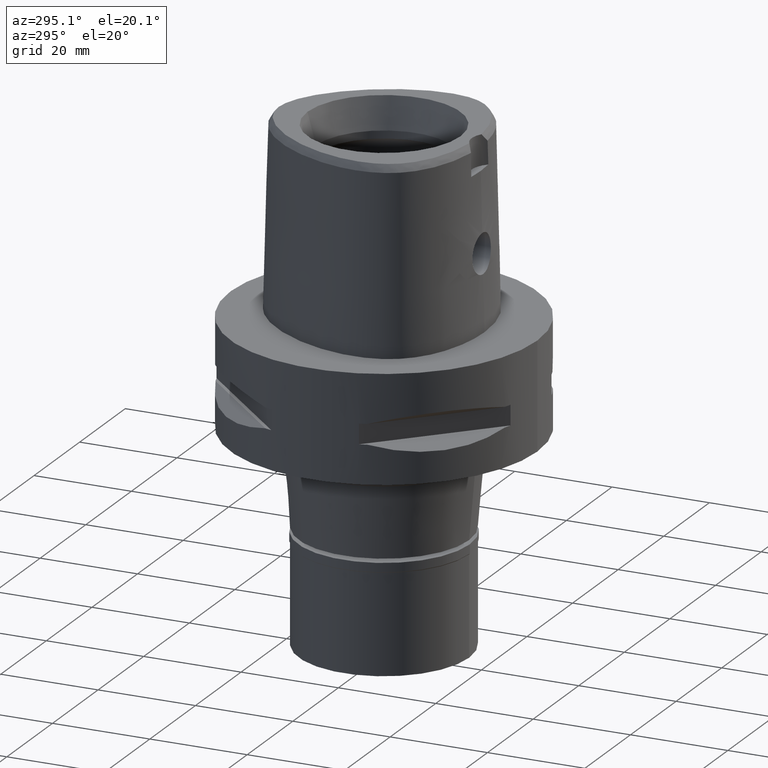
[diagram: clean part render]
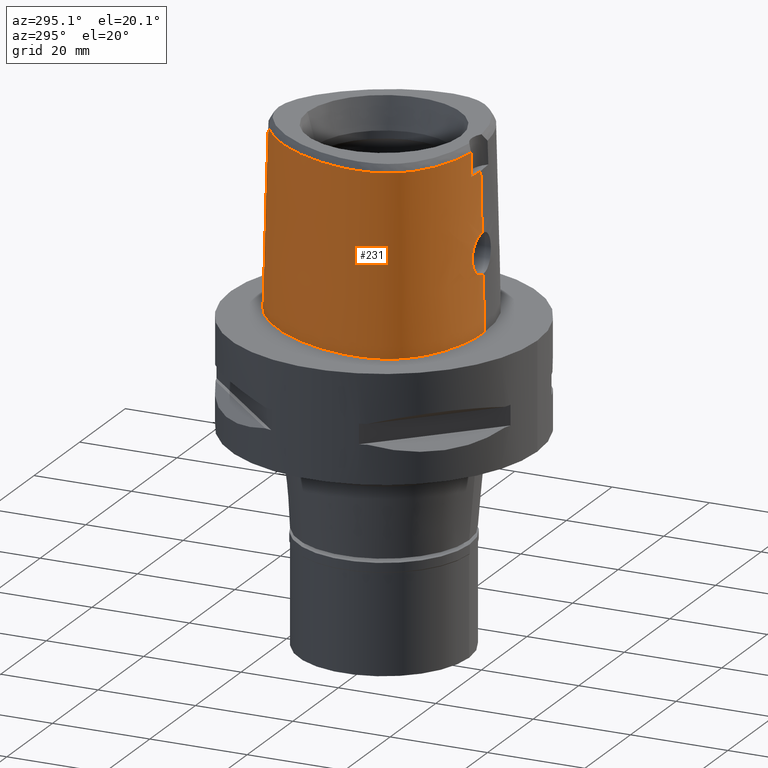
[diagram: same view with one face highlighted and labeled with its STEP entity id]
A machine part, auxiliary view. The second image highlights one B-rep face of the part: STEP entity #231.
In plain terms, the highlighted face is a freeform B-spline surface patch.
Its self-contained STEP definition (entity closure, byte-faithful):
#16 = CARTESIAN_POINT ( 'NONE',  ( -3.649858191622795456, -20.05285460892899607, 17.25615196024159559 ) ) ;
#40 = CARTESIAN_POINT ( 'NONE',  ( -1.218688521293909810, -20.16976517622365250, 19.36289558661738397 ) ) ;
#63 = CARTESIAN_POINT ( 'NONE',  ( -3.772616113751972478, -20.12080066352347174, 14.02676866728383942 ) ) ;
#64 = ORIENTED_EDGE ( 'NONE', *, *, #3840, .T. ) ;
#117 = CARTESIAN_POINT ( 'NONE',  ( -3.563466956011494879, -20.15432510150082734, 13.57422877057604005 ) ) ;
#127 = CARTESIAN_POINT ( 'NONE',  ( -21.57281239326000133, -9.001246195373999726, -0.7304377057491999725 ) ) ;
#135 = CARTESIAN_POINT ( 'NONE',  ( -3.389317851003633031, -20.17900000631157909, 13.28299490760078783 ) ) ;
#143 = CARTESIAN_POINT ( 'NONE',  ( 0.4441907014477999849, 22.53710777146999789, 37.25232299321000795 ) ) ;
#156 = CARTESIAN_POINT ( 'NONE',  ( -1.826967432883000104E-12, -20.38876923348000147, 11.44999999999999929 ) ) ;
#169 = CARTESIAN_POINT ( 'NONE',  ( -20.36546124570000060, -11.75800453239999932, -0.7304377057491999725 ) ) ;
#186 = CARTESIAN_POINT ( 'NONE',  ( -20.09619618740784119, -10.23243843868653968, 36.52186244848000740 ) ) ;
#196 = CARTESIAN_POINT ( 'NONE',  ( -10.55288405350999881, 18.94467586893999922, 11.93048252724000058 ) ) ;
#216 = CARTESIAN_POINT ( 'NONE',  ( -2.568271205913000177, 23.31126238454999822, -0.7304377057491999725 ) ) ;
#231 = ADVANCED_FACE ( 'NONE', ( #809 ), #270, .T. ) ;
#266 = CARTESIAN_POINT ( 'NONE',  ( -1.836486890036999942, -19.76356454731999790, 37.25232299321000795 ) ) ;
#270 = B_SPLINE_SURFACE_WITH_KNOTS ( 'NONE', 3, 3, ( 
 ( #2274, #3753, #4266, #4609 ),
 ( #1249, #4567, #3458, #143 ),
 ( #3852, #1638, #3137, #3506 ),
 ( #216, #3525, #2319, #955 ),
 ( #2008, #2036, #888, #1316 ),
 ( #4629, #498, #2768, #1275 ),
 ( #1681, #196, #2728, #2704 ),
 ( #2413, #2747, #518, #4587 ),
 ( #4199, #3117, #3804, #3096 ),
 ( #3442, #2349, #3050, #1972 ),
 ( #4544, #3832, #4243, #1228 ),
 ( #586, #3907, #1296, #4223 ),
 ( #2056, #2681, #4177, #857 ),
 ( #127, #908, #1619, #3073 ),
 ( #2367, #1989, #3480, #533 ),
 ( #169, #1661, #928, #2387 ),
 ( #3877, #559, #2836, #4726 ),
 ( #288, #2455, #3949, #1344 ),
 ( #2125, #3207, #4679, #627 ),
 ( #1365, #2100, #653, #4702 ),
 ( #1000, #3578, #3600, #1384 ),
 ( #1408, #4332, #1025, #2433 ),
 ( #1728, #1770, #2482, #266 ),
 ( #1751, #3978, #1796, #3231 ),
 ( #674, #2816, #2795, #4288 ) ),
 .UNSPECIFIED., .F., .F., .F.,
 ( 4, 1, 1, 1, 1, 1, 1, 1, 1, 1, 1, 1, 1, 1, 1, 1, 1, 1, 1, 1, 1, 1, 4 ),
 ( 4, 4 ),
 ( -0.01173777939057999917, 0.0000000000000000000, 0.04166666666769999749, 0.08333333333431000578, 0.1250000000009000023, 0.1666666666676000219, 0.2500000000008000267, 0.3333333333339000282, 0.4166666666672000363, 0.5000000000004000134, 0.5416666666671000607, 0.5833333333336000459, 0.6250000000002999823, 0.6458333333335000148, 0.6666666666668999985, 0.6875000000001999512, 0.7083333333335000148, 0.7500000000001000311, 0.7916666666667000474, 0.8333333333333000637, 0.9166666666666000163, 1.000000000000000000, 1.008985696609000060 ),
 ( 7.050089470551000224E-10, 0.9999999640444999782 ),
 .UNSPECIFIED. ) ;
#288 = CARTESIAN_POINT ( 'NONE',  ( -18.58171406635000267, -14.18198046596000061, -0.7304377057491999725 ) ) ;
#310 = CARTESIAN_POINT ( 'NONE',  ( -0.2465602664575549108, -20.18628283968999426, 19.54999999999999005 ) ) ;
#316 = CARTESIAN_POINT ( 'NONE',  ( -18.06826688405839221, 10.43171874929906373, 5.578078756817046735E-08 ) ) ;
#342 = CARTESIAN_POINT ( 'NONE',  ( -2.841795523416677849, -20.09992001380241788, 18.38561866173669657 ) ) ;
#346 = LINE ( 'NONE', #4310, #3027 ) ;
#365 = CARTESIAN_POINT ( 'NONE',  ( -2.849743677673421516, -20.09946755748678626, 18.37775519025476001 ) ) ;
#385 = CARTESIAN_POINT ( 'NONE',  ( -4.049869104643215145, -20.05129905478609587, 15.54469739549604057 ) ) ;
#409 = B_SPLINE_CURVE_WITH_KNOTS ( 'NONE', 3,
 ( #3038, #3790, #2358, #3843, #2757, #1306, #2401, #576, #2047, #186, #3897, #1671, #4255, #3128, #941, #4620, #2203, #2177, #2627, #1516, #1440, #1100, #2967 ),
 .UNSPECIFIED., .F., .F.,
 ( 4, 1, 1, 1, 1, 1, 1, 1, 1, 1, 1, 1, 1, 1, 1, 1, 1, 1, 1, 1, 4 ),
 ( 0.0000000000000000000, 0.03580973941716469877, 0.1234633994701209853, 0.1672902294965465941, 0.2111170595229721891, 0.2549438895493977841, 0.2768573045626106510, 0.2987707195758233514, 0.3206841345891413009, 0.3425975496022489741, 0.3864243796287796795, 0.4302512096551000531, 0.4740780396816308695, 0.5617316997344818930, 0.6493853597874382766, 0.7370390198401842730, 0.8246926798930355185, 0.8685195099195662793, 0.9123463399459812440, 0.9561731699724174138, 1.000000000000000000 ),
 .UNSPECIFIED. ) ;
#415 = CARTESIAN_POINT ( 'NONE',  ( -2.076619386130083456, -20.13897606457087974, 18.97731061925280827 ) ) ;
#436 = CARTESIAN_POINT ( 'NONE',  ( -2.858582045861465470, -20.09896337044925119, 18.36897456041259247 ) ) ;
#456 = CARTESIAN_POINT ( 'NONE',  ( -1.577307334188390975, -20.34546186348035945, 11.76976510540186283 ) ) ;
#471 = B_SPLINE_CURVE_WITH_KNOTS ( 'NONE', 3,
 ( #1375, #2826, #4320, #3962 ),
 .UNSPECIFIED., .F., .F.,
 ( 4, 4 ),
 ( 0.0000000000000000000, 1.000000000000000000 ),
 .UNSPECIFIED. ) ;
#472 = EDGE_CURVE ( 'NONE', #1996, #4533, #3687, .T. ) ;
#498 = CARTESIAN_POINT ( 'NONE',  ( -7.420053134118999694, 21.05635744665000075, 11.93048252724000058 ) ) ;
#509 = CARTESIAN_POINT ( 'NONE',  ( -1.764048498118580666, -20.33452150806801129, 11.85388578886081490 ) ) ;
#518 = CARTESIAN_POINT ( 'NONE',  ( -13.93560864782999964, 15.24203790070000153, 24.59140276021999938 ) ) ;
#526 = CARTESIAN_POINT ( 'NONE',  ( -3.476817332028718788, -20.16688086450436757, 13.42262370835924656 ) ) ;
#533 = CARTESIAN_POINT ( 'NONE',  ( -20.07948492776000293, -10.22500064213000037, 37.25232299321000795 ) ) ;
#559 = CARTESIAN_POINT ( 'NONE',  ( -19.40779768539000116, -12.64961927206000070, 11.93048252724000058 ) ) ;
#576 = CARTESIAN_POINT ( 'NONE',  ( -18.90964971337785983, -12.28759719905239045, 36.52186244848000740 ) ) ;
#586 = CARTESIAN_POINT ( 'NONE',  ( -22.26285556604000249, -4.100361500044999552, -0.7304377057491999725 ) ) ;
#624 = CARTESIAN_POINT ( 'NONE',  ( -1.826967432883000104E-12, -20.38876923348000147, 11.44999999999999929 ) ) ;
#627 = CARTESIAN_POINT ( 'NONE',  ( -16.38077686191000026, -14.94316452263999828, 37.25232299321000795 ) ) ;
#630 = CARTESIAN_POINT ( 'NONE',  ( -14.67337964350561208, -17.21410156128839120, 5.578078756817046735E-08 ) ) ;
#653 = CARTESIAN_POINT ( 'NONE',  ( -14.36818029103000072, -16.67825722750999873, 24.59140276021999938 ) ) ;
#672 = CARTESIAN_POINT ( 'NONE',  ( 2.041042029990999821E-08, -19.88004246002000031, 31.80000004972000127 ) ) ;
#674 = CARTESIAN_POINT ( 'NONE',  ( 0.6840430853692001101, -20.68668155051999946, -0.7304377057491999725 ) ) ;
#693 = CARTESIAN_POINT ( 'NONE',  ( -3.762864782077179004, -20.12247647892435864, 14.00219278009875445 ) ) ;
#722 = CARTESIAN_POINT ( 'NONE',  ( -4.047644476448693851, -20.04912645071335930, 15.64176500048648855 ) ) ;
#746 = CARTESIAN_POINT ( 'NONE',  ( -2.541035532969751376, -20.11625602304394889, 18.65525438412482373 ) ) ;
#769 = CARTESIAN_POINT ( 'NONE',  ( -3.867989777293329379, -20.10354468166140762, 14.29757425333923315 ) ) ;
#800 = CARTESIAN_POINT ( 'NONE',  ( -2.694934699592128169, -20.10807502175849493, 18.52371569493945103 ) ) ;
#809 = FACE_OUTER_BOUND ( 'NONE', #1065, .T. ) ;
#822 = CARTESIAN_POINT ( 'NONE',  ( -3.305989288864819464, -20.19025274514700286, 13.15682387669119180 ) ) ;
#857 = CARTESIAN_POINT ( 'NONE',  ( -21.13154876751000089, -6.714587060488000247, 37.25232299321000795 ) ) ;
#888 = CARTESIAN_POINT ( 'NONE',  ( -4.868968415433998942, 21.95285536057999920, 24.59140276021999938 ) ) ;
#908 = CARTESIAN_POINT ( 'NONE',  ( -21.26836741843999690, -8.910752246401999699, 11.93048252724000058 ) ) ;
#927 = VERTEX_POINT ( 'NONE', #3716 ) ;
#928 = CARTESIAN_POINT ( 'NONE',  ( -19.81622822793000083, -11.44090470054999997, 24.59140276021999938 ) ) ;
#941 = CARTESIAN_POINT ( 'NONE',  ( -19.88562090098201196, 4.345879983792136692, 36.52186244848000740 ) ) ;
#955 = CARTESIAN_POINT ( 'NONE',  ( -2.373090300183000156, 22.37624338796999979, 37.25232299321000795 ) ) ;
#971 = VERTEX_POINT ( 'NONE', #2619 ) ;
#1000 = CARTESIAN_POINT ( 'NONE',  ( -11.23887130274999890, -18.91049776076999578, -0.7304377057491999725 ) ) ;
#1025 = CARTESIAN_POINT ( 'NONE',  ( -6.232237579969999608, -19.68961177282000108, 24.59140276021999938 ) ) ;
#1028 = CARTESIAN_POINT ( 'NONE',  ( -20.74942740748031866, 4.657187499524839680, 5.578078756817046735E-08 ) ) ;
#1033 = VERTEX_POINT ( 'NONE', #4502 ) ;
#1055 = CARTESIAN_POINT ( 'NONE',  ( -20.34961798436241054, -11.74885742116761378, 5.578078756817046735E-08 ) ) ;
#1065 = EDGE_LOOP ( 'NONE', ( #3628, #1079, #3177, #4565, #3230, #4300, #3762, #64 ) ) ;
#1071 = CARTESIAN_POINT ( 'NONE',  ( -4.049378693777793359, -20.05052524963973681, 15.57781592039557950 ) ) ;
#1079 = ORIENTED_EDGE ( 'NONE', *, *, #2034, .F. ) ;
#1092 = CARTESIAN_POINT ( 'NONE',  ( -1.513006591026923697, -20.16094715275854909, 19.25680973155101583 ) ) ;
#1098 = CARTESIAN_POINT ( 'NONE',  ( -22.05732874183049219, -6.847636718550103474, 5.578078756817046735E-08 ) ) ;
#1100 = CARTESIAN_POINT ( 'NONE',  ( -0.7901461696979037441, 22.56201478746783806, 36.52186244848000740 ) ) ;
#1121 = CARTESIAN_POINT ( 'NONE',  ( -3.921173084819797872, -20.04104734494617190, 16.54732451996678222 ) ) ;
#1143 = CARTESIAN_POINT ( 'NONE',  ( -2.655457370615677437, -20.11019771419116609, 18.55835643850276639 ) ) ;
#1167 = CARTESIAN_POINT ( 'NONE',  ( -2.008183232375480021, -20.14203900875502384, 19.01707311501905551 ) ) ;
#1228 = CARTESIAN_POINT ( 'NONE',  ( -21.05621900266000068, -0.4440251782989000362, 37.25232299321000795 ) ) ;
#1244 = CARTESIAN_POINT ( 'NONE',  ( -2.503154198992993962, -19.81241979316181201, 31.80000012753031413 ) ) ;
#1249 = CARTESIAN_POINT ( 'NONE',  ( 0.4823619557848999317, 23.48603818279000066, -0.7304377057491999725 ) ) ;
#1261 = CARTESIAN_POINT ( 'NONE',  ( -1.818429026798849657, -20.33108181647827806, 11.88065649053977779 ) ) ;
#1275 = CARTESIAN_POINT ( 'NONE',  ( -7.099337721380000410, 20.50831381300999823, 37.25232299321000795 ) ) ;
#1288 = CARTESIAN_POINT ( 'NONE',  ( -1.564168861561392898, -20.34618638899214815, 11.76423681587232473 ) ) ;
#1296 = CARTESIAN_POINT ( 'NONE',  ( -21.62788399967999808, -4.104079498482999355, 24.59140276021999938 ) ) ;
#1306 = CARTESIAN_POINT ( 'NONE',  ( -16.39211280191495845, -14.95758113318670013, 36.52186244848000740 ) ) ;
#1316 = CARTESIAN_POINT ( 'NONE',  ( -4.750826164977999255, 21.65775791936999894, 37.25232299321000795 ) ) ;
#1344 = CARTESIAN_POINT ( 'NONE',  ( -17.88993649006999931, -13.52675014241999918, 37.25232299321000795 ) ) ;
#1365 = CARTESIAN_POINT ( 'NONE',  ( -14.68244497151999894, -17.23001773086999933, -0.7304377057491999725 ) ) ;
#1368 = CARTESIAN_POINT ( 'NONE',  ( -7.571159433644832681, 21.31457031129234991, 5.578078756817046735E-08 ) ) ;
#1375 = CARTESIAN_POINT ( 'NONE',  ( -3.637738201363999835, -19.56971413236999879, 36.52186244848000030 ) ) ;
#1384 = CARTESIAN_POINT ( 'NONE',  ( -10.91263705801000050, -18.01320795109999651, 37.25232299321000795 ) ) ;
#1408 = CARTESIAN_POINT ( 'NONE',  ( -6.344715576812999913, -20.31619965031999797, -0.7304377057491999725 ) ) ;
#1411 = CARTESIAN_POINT ( 'NONE',  ( -5.098437016762670027, 22.52602538933180654, 5.578078756817046735E-08 ) ) ;
#1440 = CARTESIAN_POINT ( 'NONE',  ( -2.376843896520111521, 22.39422508473955276, 36.52186244848000740 ) ) ;
#1454 = CARTESIAN_POINT ( 'NONE',  ( -3.624864988588119452, -20.05423747265956536, 17.30729158533448242 ) ) ;
#1478 = CARTESIAN_POINT ( 'NONE',  ( -3.734204860122324998, -20.04849282776993746, 17.06789273197489365 ) ) ;
#1509 = CARTESIAN_POINT ( 'NONE',  ( -4.043900534997319163, -20.04716150420645704, 15.73788962697827643 ) ) ;
#1516 = CARTESIAN_POINT ( 'NONE',  ( -4.757642277159076727, 21.67478330407253040, 36.52186244848000740 ) ) ;
#1533 = CARTESIAN_POINT ( 'NONE',  ( -2.021975801308057985, -20.14144108781809450, 19.00914719193512425 ) ) ;
#1552 = CARTESIAN_POINT ( 'NONE',  ( -2.432431204728643159, -20.28556448456913586, 12.25071786241814387 ) ) ;
#1569 = VECTOR ( 'NONE', #4329, 1000.000000000000114 ) ;
#1610 = CARTESIAN_POINT ( 'NONE',  ( -2.919415606531457819, -20.23623719063768789, 12.69286763397334106 ) ) ;
#1619 = CARTESIAN_POINT ( 'NONE',  ( -20.96392244361999957, -8.820258297431001537, 24.59140276021999938 ) ) ;
#1638 = CARTESIAN_POINT ( 'NONE',  ( -0.5985508179845999699, 23.20171276753999834, 11.93048252724000058 ) ) ;
#1650 = CARTESIAN_POINT ( 'NONE',  ( -3.655112673111937216, -20.14040906882405224, 13.75065222282470501 ) ) ;
#1661 = CARTESIAN_POINT ( 'NONE',  ( -20.09084473681999938, -11.59945461648000098, 11.93048252724000058 ) ) ;
#1671 = CARTESIAN_POINT ( 'NONE',  ( -21.14970188363856707, -6.717195958887922203, 36.52186244848000740 ) ) ;
#1681 = CARTESIAN_POINT ( 'NONE',  ( -10.75753573857999967, 19.18839675802000144, -0.7304377057491999725 ) ) ;
#1728 = CARTESIAN_POINT ( 'NONE',  ( -1.886862292265999885, -20.71358859976999867, -0.7304377057491999725 ) ) ;
#1751 = CARTESIAN_POINT ( 'NONE',  ( 0.4560943670189999688, -20.69106768545000108, -0.7304377057491999725 ) ) ;
#1770 = CARTESIAN_POINT ( 'NONE',  ( -1.870070491522999978, -20.39691391562000433, 11.93048252724000058 ) ) ;
#1773 = CARTESIAN_POINT ( 'NONE',  ( -0.8548392421977135669, 23.47499999860813347, 5.578078756817047397E-08 ) ) ;
#1796 = CARTESIAN_POINT ( 'NONE',  ( 0.4479792490987999920, -20.05810150585000429, 24.59140276021999938 ) ) ;
#1799 = CARTESIAN_POINT ( 'NONE',  ( -11.23259756679494892, -18.89324218618955697, 5.578078756817046735E-08 ) ) ;
#1819 = CARTESIAN_POINT ( 'NONE',  ( -1.431398616061842599, -20.16358825832322665, 19.28889715814925410 ) ) ;
#1838 = CARTESIAN_POINT ( 'NONE',  ( -1.531355196197170088, -20.16033613076390552, 19.24935847382499432 ) ) ;
#1844 = CARTESIAN_POINT ( 'NONE',  ( -16.95889172506567988, -15.67838867077062481, 5.578078756817046735E-08 ) ) ;
#1863 = CARTESIAN_POINT ( 'NONE',  ( -3.843220157484924737, -20.04326959302272826, 16.80670597848216730 ) ) ;
#1890 = CARTESIAN_POINT ( 'NONE',  ( -2.755818216838078261, -20.10473609888688173, 18.46794935358836298 ) ) ;
#1909 = CARTESIAN_POINT ( 'NONE',  ( -4.050826983269280923, -20.05812326574994842, 15.26911354800622433 ) ) ;
#1931 = CARTESIAN_POINT ( 'NONE',  ( -1.559081890575650275, -20.34646556254509520, 11.76210768259175410 ) ) ;
#1932 = VERTEX_POINT ( 'NONE', #624 ) ;
#1936 = CARTESIAN_POINT ( 'NONE',  ( 6.838609506018792443E-09, -20.08420636276242277, 23.63333344114128920 ) ) ;
#1960 = CARTESIAN_POINT ( 'NONE',  ( -3.752359611898203440, -20.12427161485050675, 13.97607457711757384 ) ) ;
#1972 = CARTESIAN_POINT ( 'NONE',  ( -19.86834421984000087, 4.339653634898000156, 37.25232299321000795 ) ) ;
#1989 = CARTESIAN_POINT ( 'NONE',  ( -20.65879048208999791, -10.48283619421000168, 11.93048252724000058 ) ) ;
#1996 = VERTEX_POINT ( 'NONE', #672 ) ;
#1997 = CARTESIAN_POINT ( 'NONE',  ( -2.890541755315603201, -20.23943525147280909, 12.66321716119510832 ) ) ;
#2002 = EDGE_CURVE ( 'NONE', #1932, #3379, #4699, .T. ) ;
#2008 = CARTESIAN_POINT ( 'NONE',  ( -5.105252916348000269, 22.54305024301000060, -0.7304377057491999725 ) ) ;
#2023 = CARTESIAN_POINT ( 'NONE',  ( -3.383562101598340366, -20.17977963108087636, 13.27422462535213121 ) ) ;
#2034 = EDGE_CURVE ( 'NONE', #971, #1932, #3745, .T. ) ;
#2036 = CARTESIAN_POINT ( 'NONE',  ( -4.987110665891000494, 22.24795280178999946, 11.93048252724000058 ) ) ;
#2047 = CARTESIAN_POINT ( 'NONE',  ( -19.55745547455726552, -11.29150218116194893, 36.52186244848000740 ) ) ;
#2056 = CARTESIAN_POINT ( 'NONE',  ( -22.07548129175999918, -6.850245535577999867, -0.7304377057491999725 ) ) ;
#2100 = CARTESIAN_POINT ( 'NONE',  ( -14.52531263126999939, -16.95413747918999903, 11.93048252724000058 ) ) ;
#2125 = CARTESIAN_POINT ( 'NONE',  ( -16.97022731150000041, -15.69280483165999840, -0.7304377057491999725 ) ) ;
#2149 = CARTESIAN_POINT ( 'NONE',  ( -22.24453907715009393, -4.100468750008132268, 5.578078756817046735E-08 ) ) ;
#2152 = EDGE_CURVE ( 'NONE', #3298, #927, #409, .T. ) ;
#2167 = CARTESIAN_POINT ( 'NONE',  ( -3.756303482488484669, -20.12359959389111452, 13.98581309488230318 ) ) ;
#2177 = CARTESIAN_POINT ( 'NONE',  ( -10.15538788053455121, 18.47129535094094166, 36.52186244848000740 ) ) ;
#2197 = CARTESIAN_POINT ( 'NONE',  ( -2.021645074153961552, -20.14145548737383606, 19.00933841612806319 ) ) ;
#2203 = CARTESIAN_POINT ( 'NONE',  ( -13.70645028111076513, 15.04851272300261655, 36.52186244848000740 ) ) ;
#2218 = CARTESIAN_POINT ( 'NONE',  ( -1.778004404895339174, -20.15158921387097735, 19.14143956016801340 ) ) ;
#2241 = CARTESIAN_POINT ( 'NONE',  ( -2.823322171198599406, -20.10096727497464286, 18.40374443014241734 ) ) ;
#2264 = CARTESIAN_POINT ( 'NONE',  ( -2.017798006387123255, -20.14162240326314546, 19.01155181225955459 ) ) ;
#2274 = CARTESIAN_POINT ( 'NONE',  ( 0.7234356451729000437, 23.47140592733999753, -0.7304377057491999725 ) ) ;
#2285 = CARTESIAN_POINT ( 'NONE',  ( -2.885732014503787024, -20.23996609485568143, 12.65832010092243998 ) ) ;
#2319 = CARTESIAN_POINT ( 'NONE',  ( -2.438150602092999719, 22.68791638683000045, 24.59140276021999938 ) ) ;
#2338 = CARTESIAN_POINT ( 'NONE',  ( -2.959404822593531659, -20.23176903266529081, 12.73479808965918636 ) ) ;
#2349 = CARTESIAN_POINT ( 'NONE',  ( -20.46725043977999903, 4.555493647777999477, 11.93048252724000058 ) ) ;
#2358 = CARTESIAN_POINT ( 'NONE',  ( -7.300578999875862785, -19.07170748891612178, 36.52186244848000740 ) ) ;
#2367 = CARTESIAN_POINT ( 'NONE',  ( -20.94844325925999939, -10.61175397026000056, -0.7304377057491999725 ) ) ;
#2387 = CARTESIAN_POINT ( 'NONE',  ( -19.54161171904999961, -11.28235478462000074, 37.25232299321000795 ) ) ;
#2401 = CARTESIAN_POINT ( 'NONE',  ( -17.90324032096353335, -13.53935111955425263, 36.52186244848000740 ) ) ;
#2413 = CARTESIAN_POINT ( 'NONE',  ( -14.42198652052999819, 15.65278600295000011, -0.7304377057491999725 ) ) ;
#2433 = CARTESIAN_POINT ( 'NONE',  ( -6.175998581547998967, -19.37631783405999997, 37.25232299321000795 ) ) ;
#2455 = CARTESIAN_POINT ( 'NONE',  ( -18.35112154092999859, -13.96357035810999925, 11.93048252724000058 ) ) ;
#2482 = CARTESIAN_POINT ( 'NONE',  ( -1.853278690779999849, -20.08023923147000289, 24.59140276021999938 ) ) ;
#2485 = CARTESIAN_POINT ( 'NONE',  ( -21.55524825875600570, -8.996025390226925822, 5.578078756817046735E-08 ) ) ;
#2509 = DIRECTION ( 'NONE',  ( 2.239957748160960195E-12, 0.02499051290944955331, -0.9996876883629820520 ) ) ;
#2525 = CARTESIAN_POINT ( 'NONE',  ( -2.026591507873958697, -20.14123942840556580, 19.00648564756246373 ) ) ;
#2547 = CARTESIAN_POINT ( 'NONE',  ( -3.701403975268993118, -20.05012243825612117, 17.14418479024721975 ) ) ;
#2553 = CARTESIAN_POINT ( 'NONE',  ( -19.64947365751178054, -12.82525390542999055, 5.578078756817046735E-08 ) ) ;
#2574 = CARTESIAN_POINT ( 'NONE',  ( -2.786676042250695762, -20.10302791639541198, 18.43911474626711211 ) ) ;
#2596 = CARTESIAN_POINT ( 'NONE',  ( -3.956610408110405874, -20.08538100355333711, 14.62527148348129913 ) ) ;
#2600 = CARTESIAN_POINT ( 'NONE',  ( 6.818614578713344982E-09, -19.98212988583485483, 27.71666688228254216 ) ) ;
#2619 = CARTESIAN_POINT ( 'NONE',  ( 0.0000000000000000000, -20.18628283968999781, 19.55000000000000071 ) ) ;
#2620 = CARTESIAN_POINT ( 'NONE',  ( -3.268619489317500904, -20.07508388269180344, 17.90589902893661289 ) ) ;
#2627 = CARTESIAN_POINT ( 'NONE',  ( -7.108589416785264348, 20.52412325828718664, 36.52186244848000740 ) ) ;
#2648 = CARTESIAN_POINT ( 'NONE',  ( -3.414629932098283582, -20.17555011737389137, 13.32206424777218423 ) ) ;
#2674 = CARTESIAN_POINT ( 'NONE',  ( 2.041042029990999821E-08, -19.88004246002000031, 31.80000004972000127 ) ) ;
#2681 = CARTESIAN_POINT ( 'NONE',  ( -21.76083711701000212, -6.805026043880999964, 11.93048252724000058 ) ) ;
#2704 = CARTESIAN_POINT ( 'NONE',  ( -10.14358068337999974, 18.45723409076999744, 37.25232299321000795 ) ) ;
#2728 = CARTESIAN_POINT ( 'NONE',  ( -10.34823236843999972, 18.70095497984999966, 24.59140276021999938 ) ) ;
#2740 = CARTESIAN_POINT ( 'NONE',  ( -1.037982356333698064, -20.37481338327467384, 11.54606583212734350 ) ) ;
#2747 = CARTESIAN_POINT ( 'NONE',  ( -14.17879758417999980, 15.44741195182000126, 11.93048252724000058 ) ) ;
#2757 = CARTESIAN_POINT ( 'NONE',  ( -14.22011356156190409, -16.41829364186480689, 36.52186244848000740 ) ) ;
#2768 = CARTESIAN_POINT ( 'NONE',  ( -7.259695427749000451, 20.78233562983000482, 24.59140276021999938 ) ) ;
#2793 = CARTESIAN_POINT ( 'NONE',  ( -1.826967432883000104E-12, -20.38876923348000147, 11.44999999999999929 ) ) ;
#2795 = CARTESIAN_POINT ( 'NONE',  ( 0.6718639828363999200, -20.05378887753999706, 24.59140276021999938 ) ) ;
#2816 = CARTESIAN_POINT ( 'NONE',  ( 0.6779535341028001261, -20.37023521403000004, 11.93048252724000058 ) ) ;
#2819 = CARTESIAN_POINT ( 'NONE',  ( -21.97832647648946391, -0.2810937502439825320, 5.578078756817046735E-08 ) ) ;
#2826 = CARTESIAN_POINT ( 'NONE',  ( -3.671249123513567802, -19.60525173594972514, 34.94790829898666829 ) ) ;
#2836 = CARTESIAN_POINT ( 'NONE',  ( -19.15132522398000248, -12.46323149701000155, 24.59140276021999938 ) ) ;
#2839 = CARTESIAN_POINT ( 'NONE',  ( 6.719624567630999851E-11, 23.47499999998000320, 1.604642344924999868E-13 ) ) ;
#2888 = CARTESIAN_POINT ( 'NONE',  ( -3.998365762087851216, -20.04197803307608083, 16.15807901149736736 ) ) ;
#2892 = CARTESIAN_POINT ( 'NONE',  ( -20.93173252083945357, -10.60431640568915057, 5.578078756817046735E-08 ) ) ;
#2910 = CARTESIAN_POINT ( 'NONE',  ( -2.051521487685797229, -20.14012376498398993, 18.99200786743994485 ) ) ;
#2931 = CARTESIAN_POINT ( 'NONE',  ( -4.017494180711074669, -20.04299893916017439, 16.02828855063900804 ) ) ;
#2936 = EDGE_CURVE ( 'NONE', #3298, #4533, #471, .T. ) ;
#2961 = CARTESIAN_POINT ( 'NONE',  ( -1.316948651797042347, -20.16708105591037636, 19.33100465663185830 ) ) ;
#2967 = CARTESIAN_POINT ( 'NONE',  ( -1.463675025324000219E-11, 22.56201468012000078, 36.52186680743999858 ) ) ;
#2984 = CARTESIAN_POINT ( 'NONE',  ( -3.482160346077138868, -20.06245215492685219, 17.57231517874430793 ) ) ;
#3008 = CARTESIAN_POINT ( 'NONE',  ( -0.5057211179314217153, -20.38876923348000503, 11.45000000000000284 ) ) ;
#3027 = VECTOR ( 'NONE', #2509, 1000.000000000000114 ) ;
#3029 = CARTESIAN_POINT ( 'NONE',  ( -3.637738201363999835, -19.56971413236999879, 36.52186244848000030 ) ) ;
#3038 = CARTESIAN_POINT ( 'NONE',  ( -3.637738201363999835, -19.56971413236999879, 36.52186244848000030 ) ) ;
#3050 = CARTESIAN_POINT ( 'NONE',  ( -20.16779732980999995, 4.447573641337999817, 24.59140276021999938 ) ) ;
#3062 = CARTESIAN_POINT ( 'NONE',  ( -3.037831777712182824, -20.22286493035622357, 12.82012059789525082 ) ) ;
#3073 = CARTESIAN_POINT ( 'NONE',  ( -20.65947746880999958, -8.729764348458999734, 37.25232299321000795 ) ) ;
#3085 = CARTESIAN_POINT ( 'NONE',  ( -3.227555505685868908, -20.20020796856961809, 13.04991327080335850 ) ) ;
#3096 = CARTESIAN_POINT ( 'NONE',  ( -17.25769846290999610, 9.963736504523000193, 37.25232299321000795 ) ) ;
#3112 = CARTESIAN_POINT ( 'NONE',  ( -2.902113072223782453, -20.23815556694396633, 12.67505606608045987 ) ) ;
#3117 = CARTESIAN_POINT ( 'NONE',  ( -17.80867307680000167, 10.28184208314999992, 11.93048252724000058 ) ) ;
#3128 = CARTESIAN_POINT ( 'NONE',  ( -21.07430010672353404, -0.4408303445192588987, 36.52186244848000740 ) ) ;
#3137 = CARTESIAN_POINT ( 'NONE',  ( -0.5821289232469000208, 22.88453088513000111, 24.59140276021999938 ) ) ;
#3177 = ORIENTED_EDGE ( 'NONE', *, *, #3919, .F. ) ;
#3207 = CARTESIAN_POINT ( 'NONE',  ( -16.77374382830999622, -15.44292472866000132, 11.93048252724000058 ) ) ;
#3229 = CARTESIAN_POINT ( 'NONE',  ( 0.0000000000000000000, -20.18628283968999781, 19.55000000000000071 ) ) ;
#3230 = ORIENTED_EDGE ( 'NONE', *, *, #2936, .F. ) ;
#3231 = CARTESIAN_POINT ( 'NONE',  ( 0.4439216901386000558, -19.74161841605000234, 37.25232299321000795 ) ) ;
#3234 = CARTESIAN_POINT ( 'NONE',  ( -14.40795638851530214, 15.64093749909538289, 5.578078756817046735E-08 ) ) ;
#3259 = CARTESIAN_POINT ( 'NONE',  ( -0.5021448798721717122, -20.18408048456115722, 19.52743177502782501 ) ) ;
#3265 = CARTESIAN_POINT ( 'NONE',  ( -1.465435788041999934E-11, -20.67499999999999716, 1.633878217906999793E-13 ) ) ;
#3282 = CARTESIAN_POINT ( 'NONE',  ( -2.031034477202656507, -20.14104210975834874, 19.00391515486004224 ) ) ;
#3298 = VERTEX_POINT ( 'NONE', #3029 ) ;
#3302 = CARTESIAN_POINT ( 'NONE',  ( -1.480375400283553855, -20.16201391852408520, 19.26978739159155296 ) ) ;
#3325 = CARTESIAN_POINT ( 'NONE',  ( -1.022288987465759691, -20.17472047526356249, 19.42123466860541114 ) ) ;
#3354 = CARTESIAN_POINT ( 'NONE',  ( -3.543973192748715473, -20.05881951838941646, 17.46381013561126494 ) ) ;
#3375 = CARTESIAN_POINT ( 'NONE',  ( -2.023001561070843390, -20.14139641261980174, 19.00855601449814714 ) ) ;
#3379 = VERTEX_POINT ( 'NONE', #3933 ) ;
#3430 = CARTESIAN_POINT ( 'NONE',  ( -3.102334027317240839, -20.21528806603824080, 12.89569424535697983 ) ) ;
#3442 = CARTESIAN_POINT ( 'NONE',  ( -20.76670354975999899, 4.663413654218000026, -0.7304377057491999725 ) ) ;
#3458 = CARTESIAN_POINT ( 'NONE',  ( 0.4569144528934999672, 22.85341790857999911, 24.59140276021999938 ) ) ;
#3469 = CARTESIAN_POINT ( 'NONE',  ( -1.683425324668147427, -20.33938563297484592, 11.81632545379449439 ) ) ;
#3480 = CARTESIAN_POINT ( 'NONE',  ( -20.36913770493000087, -10.35391841816999836, 24.59140276021999938 ) ) ;
#3497 = CARTESIAN_POINT ( 'NONE',  ( -2.660807037163018585, -20.26471581874367800, 12.43099884896996521 ) ) ;
#3506 = CARTESIAN_POINT ( 'NONE',  ( -0.5657070285092000717, 22.56734900273000122, 37.25232299321000795 ) ) ;
#3525 = CARTESIAN_POINT ( 'NONE',  ( -2.503210904003000170, 22.99958938569000111, 11.93048252724000058 ) ) ;
#3561 = CARTESIAN_POINT ( 'NONE',  ( -3.736722311398999796, -19.67781602443999844, 31.80000000000000071 ) ) ;
#3578 = CARTESIAN_POINT ( 'NONE',  ( -11.13012655449999855, -18.61140115754999869, 11.93048252724000058 ) ) ;
#3600 = CARTESIAN_POINT ( 'NONE',  ( -11.02138180625999908, -18.31230455431999715, 24.59140276021999938 ) ) ;
#3623 = CARTESIAN_POINT ( 'NONE',  ( -2.564517726670016540, 23.29328124862723826, 5.578078756817046735E-08 ) ) ;
#3628 = ORIENTED_EDGE ( 'NONE', *, *, #2002, .F. ) ;
#3647 = CARTESIAN_POINT ( 'NONE',  ( -2.470130868495396204, -20.11988187101885472, 18.71049948356222004 ) ) ;
#3671 = CARTESIAN_POINT ( 'NONE',  ( -3.088555842887359404, -20.08581679207195592, 18.13954869057193520 ) ) ;
#3687 = B_SPLINE_CURVE_WITH_KNOTS ( 'NONE', 3,
 ( #3849, #3773, #1244, #4152 ),
 .UNSPECIFIED., .F., .F.,
 ( 4, 4 ),
 ( 0.0000000000000000000, 1.000000000000000000 ),
 .UNSPECIFIED. ) ;
#3695 = CARTESIAN_POINT ( 'NONE',  ( -4.036681617622443596, -20.04559631334749525, 15.83453488479523408 ) ) ;
#3716 = CARTESIAN_POINT ( 'NONE',  ( -1.463675025324000219E-11, 22.56201468012000078, 36.52186680743999858 ) ) ;
#3719 = CARTESIAN_POINT ( 'NONE',  ( -3.836466893886311347, -20.10950395112956102, 14.19903593889004334 ) ) ;
#3744 = CARTESIAN_POINT ( 'NONE',  ( -1.659611567621792183, -20.15600215718337296, 19.19640397996084502 ) ) ;
#3745 = B_SPLINE_CURVE_WITH_KNOTS ( 'NONE', 3,
 ( #3229, #310, #3259, #4755, #3325, #40, #2961, #1819, #3302, #1092, #1838, #3744, #2218, #4122, #4406, #1167, #2264, #2197, #1533, #3375, #2525, #3282, #2910, #415, #4778, #4074, #3647, #746, #1143, #800, #1890, #2574, #2241, #342, #365, #4021, #436, #3671, #2620, #2984, #3354, #1454, #16, #4432, #2547, #4797, #4383, #4049, #1478, #1863, #1121, #2888, #2931, #3695, #1509, #722, #1071, #385, #1909, #4457, #2596, #4097, #769, #3719, #4478, #63, #693, #2167, #1960, #4186, #1650, #117, #3822, #526, #4532, #2648, #4144, #135, #2023, #822, #3085, #3430, #3062, #2338, #1610, #3112, #1997, #2285, #3497, #1552, #3766, #4234, #1261, #509, #3469, #4165, #4601, #456, #1288, #1931, #2740, #3008, #156 ),
 .UNSPECIFIED., .F., .F.,
 ( 4, 2, 2, 1, 1, 2, 2, 2, 1, 1, 2, 2, 1, 2, 2, 2, 2, 2, 1, 1, 1, 2, 2, 2, 2, 2, 1, 1, 2, 2, 2, 2, 1, 2, 2, 2, 2, 1, 1, 1, 2, 2, 2, 2, 1, 1, 2, 2, 2, 1, 1, 1, 2, 2, 2, 2, 2, 1, 1, 2, 2, 4 ),
 ( 0.0000000000000000000, 0.06249999999993846589, 0.09374999999990761557, 0.1093749999998923084, 0.1171874999998847866, 0.1210937499998810118, 0.1249999999998772371, 0.1562499999998447908, 0.1640624999998365752, 0.1660156249998343547, 0.1665039062498337163, 0.1669921874998330502, 0.1679687499998320510, 0.1718749999998330502, 0.1874999999998363531, 0.2187499999998429312, 0.2343749999998462064, 0.2421874999998478439, 0.2460937499998486766, 0.2480468749998488986, 0.2490234374998492040, 0.2495117187498491484, 0.2499999999998491207, 0.3124999999998555045, 0.3437499999998583355, 0.3593749999998597788, 0.3671874999998600564, 0.3710937499998605560, 0.3730468749998608891, 0.3749999999998611666, 0.4374999999998735456, 0.4687499999998797628, 0.4843749999998828715, 0.4921874999998844258, 0.4999999999998859801, 0.5624999999998983036, 0.5937499999999045208, 0.6093749999999075184, 0.6171874999999092948, 0.6210937499999101830, 0.6230468749999106270, 0.6249999999999109601, 0.6562499999999155120, 0.6718749999999178435, 0.6796874999999191758, 0.6835937499999198419, 0.6855468749999201750, 0.6874999999999203970, 0.7187499999999291678, 0.7343749999999336087, 0.7421874999999357181, 0.7460937499999370504, 0.7480468749999376055, 0.7499999999999382716, 0.8124999999999565903, 0.8437499999999655831, 0.8593749999999700240, 0.8671874999999723554, 0.8710937499999733546, 0.8730468749999737987, 0.8749999999999741318, 1.000000000000000000 ),
 .UNSPECIFIED. ) ;
#3753 = CARTESIAN_POINT ( 'NONE',  ( 0.7042335271847000033, 23.15549819539000254, 11.93048252724000058 ) ) ;
#3758 = B_SPLINE_CURVE_WITH_KNOTS ( 'NONE', 3,
 ( #2839, #1773, #3623, #1411, #1368, #3981, #3234, #316, #1028, #2819, #2149, #1098, #2485, #2892, #1055, #2553, #3952, #1844, #630, #1799, #4055, #4729, #3265 ),
 .UNSPECIFIED., .F., .F.,
 ( 4, 1, 1, 1, 1, 1, 1, 1, 1, 1, 1, 1, 1, 1, 1, 1, 1, 1, 1, 1, 4 ),
 ( 0.0000000000000000000, 0.04166666666769999749, 0.08333333333431000578, 0.1250000000009000023, 0.1666666666676000219, 0.2500000000008000267, 0.3333333333339000282, 0.4166666666672000363, 0.5000000000004000134, 0.5416666666671000607, 0.5833333333336000459, 0.6250000000002999823, 0.6458333333335000148, 0.6666666666668999985, 0.6875000000001999512, 0.7083333333335000148, 0.7500000000001000311, 0.7916666666667000474, 0.8333333333333000637, 0.9166666666666000163, 1.000000000000000000 ),
 .UNSPECIFIED. ) ;
#3762 = ORIENTED_EDGE ( 'NONE', *, *, #3785, .T. ) ;
#3766 = CARTESIAN_POINT ( 'NONE',  ( -2.094844007797711072, -20.31211088366298156, 12.03126210606356850 ) ) ;
#3773 = CARTESIAN_POINT ( 'NONE',  ( -1.251533273950157232, -19.88005341379788149, 31.80000012753031413 ) ) ;
#3785 = EDGE_CURVE ( 'NONE', #927, #1033, #346, .T. ) ;
#3790 = CARTESIAN_POINT ( 'NONE',  ( -4.467522189394846244, -19.48130287050534193, 36.52186244848000740 ) ) ;
#3794 = CARTESIAN_POINT ( 'NONE',  ( 0.0000000000000000000, -20.18628283968999781, 19.55000000000000071 ) ) ;
#3804 = CARTESIAN_POINT ( 'NONE',  ( -17.53318576985000021, 10.12278929383999859, 24.59140276021999938 ) ) ;
#3822 = CARTESIAN_POINT ( 'NONE',  ( -3.530444546071256795, -20.15920354633630751, 13.51418395197811329 ) ) ;
#3832 = CARTESIAN_POINT ( 'NONE',  ( -21.68301101194999703, -0.3332744035075000388, 11.93048252724000058 ) ) ;
#3840 = EDGE_CURVE ( 'NONE', #1033, #3379, #3758, .T. ) ;
#3843 = CARTESIAN_POINT ( 'NONE',  ( -10.91891098965014351, -18.03046406390180323, 36.52186244848000740 ) ) ;
#3849 = CARTESIAN_POINT ( 'NONE',  ( 2.041042029990999821E-08, -19.88004246002000031, 31.80000004972000127 ) ) ;
#3852 = CARTESIAN_POINT ( 'NONE',  ( -0.6149727127223000300, 23.51889464993999823, -0.7304377057491999725 ) ) ;
#3877 = CARTESIAN_POINT ( 'NONE',  ( -19.66427014679999985, -12.83600704712000073, -0.7304377057491999725 ) ) ;
#3897 = CARTESIAN_POINT ( 'NONE',  ( -20.67704215115913513, -8.734985316449034087, 36.52186244848000740 ) ) ;
#3907 = CARTESIAN_POINT ( 'NONE',  ( -21.94536978286000206, -4.102220499263999898, 11.93048252724000058 ) ) ;
#3919 = EDGE_CURVE ( 'NONE', #1996, #971, #4284, .T. ) ;
#3933 = CARTESIAN_POINT ( 'NONE',  ( -1.465435788041999934E-11, -20.67499999999999716, 1.633878217906999793E-13 ) ) ;
#3949 = CARTESIAN_POINT ( 'NONE',  ( -18.12052901550000072, -13.74516025026999877, 24.59140276021999938 ) ) ;
#3952 = CARTESIAN_POINT ( 'NONE',  ( -18.56841065040598693, -14.16937988185256181, 5.578078756817046735E-08 ) ) ;
#3962 = CARTESIAN_POINT ( 'NONE',  ( -3.736722311398999796, -19.67781602443999844, 31.80000000000000071 ) ) ;
#3978 = CARTESIAN_POINT ( 'NONE',  ( 0.4520368080588999526, -20.37458459565000268, 11.93048252724000058 ) ) ;
#3981 = CARTESIAN_POINT ( 'NONE',  ( -10.74572890969355221, 19.17433593642237710, 5.578078756817046735E-08 ) ) ;
#4021 = CARTESIAN_POINT ( 'NONE',  ( -2.855049201402470871, -20.09916511325436517, 18.37249160504412515 ) ) ;
#4049 = CARTESIAN_POINT ( 'NONE',  ( -3.732529427492054630, -20.04857415780293550, 17.07186709361348775 ) ) ;
#4055 = CARTESIAN_POINT ( 'NONE',  ( -6.341471018963880546, -20.29812499862724096, 5.578078756817046735E-08 ) ) ;
#4074 = CARTESIAN_POINT ( 'NONE',  ( -2.277776452268256868, -20.12952034116264244, 18.85255845575890277 ) ) ;
#4097 = CARTESIAN_POINT ( 'NONE',  ( -3.925551792313849209, -20.09219299387592272, 14.49439893607098639 ) ) ;
#4122 = CARTESIAN_POINT ( 'NONE',  ( -1.929707509763142648, -20.14537238179061163, 19.06088599019263441 ) ) ;
#4144 = CARTESIAN_POINT ( 'NONE',  ( -3.399497980125670171, -20.17761555510006133, 13.29863665925467409 ) ) ;
#4152 = CARTESIAN_POINT ( 'NONE',  ( -3.736722311398999796, -19.67781602443999844, 31.80000000000000071 ) ) ;
#4165 = CARTESIAN_POINT ( 'NONE',  ( -1.643350260050138845, -20.34174384230881572, 11.79819414936234878 ) ) ;
#4177 = CARTESIAN_POINT ( 'NONE',  ( -21.44619294226000150, -6.759806552184999262, 24.59140276021999938 ) ) ;
#4186 = CARTESIAN_POINT ( 'NONE',  ( -3.706321142903602261, -20.13209078281245112, 13.86328696076803624 ) ) ;
#4199 = CARTESIAN_POINT ( 'NONE',  ( -18.08416038374999957, 10.44089487245999948, -0.7304377057491999725 ) ) ;
#4223 = CARTESIAN_POINT ( 'NONE',  ( -21.31039821650000121, -4.105938497701999701, 37.25232299321000795 ) ) ;
#4234 = CARTESIAN_POINT ( 'NONE',  ( -1.983068859466214029, -20.32017191675353374, 11.96655067129563399 ) ) ;
#4243 = CARTESIAN_POINT ( 'NONE',  ( -21.36961500731000285, -0.3886497909032000098, 24.59140276021999938 ) ) ;
#4255 = CARTESIAN_POINT ( 'NONE',  ( -21.32871527670241463, -4.105831244393616686, 36.52186244848000740 ) ) ;
#4266 = CARTESIAN_POINT ( 'NONE',  ( 0.6850314091965999941, 22.83959046343999688, 24.59140276021999938 ) ) ;
#4284 = B_SPLINE_CURVE_WITH_KNOTS ( 'NONE', 3,
 ( #2674, #2600, #1936, #3794 ),
 .UNSPECIFIED., .F., .F.,
 ( 4, 4 ),
 ( 0.0000000000000000000, 1.000000000000000000 ),
 .UNSPECIFIED. ) ;
#4288 = CARTESIAN_POINT ( 'NONE',  ( 0.6657744315699999360, -19.73734254105000119, 37.25232299321000795 ) ) ;
#4300 = ORIENTED_EDGE ( 'NONE', *, *, #2152, .T. ) ;
#4310 = CARTESIAN_POINT ( 'NONE',  ( -1.463675025324000219E-11, 22.56201468012000078, 36.52186680743999858 ) ) ;
#4320 = CARTESIAN_POINT ( 'NONE',  ( -3.704239276368590961, -19.64128040965313460, 33.37395414949332917 ) ) ;
#4329 = DIRECTION ( 'NONE',  ( -1.119946227441976039E-12, -0.02499051295360945474, -0.9996876883618780463 ) ) ;
#4332 = CARTESIAN_POINT ( 'NONE',  ( -6.288476578390999272, -20.00290571157000130, 11.93048252724000058 ) ) ;
#4383 = CARTESIAN_POINT ( 'NONE',  ( -3.727474524012349466, -20.04882054040391637, 17.08381683281810837 ) ) ;
#4406 = CARTESIAN_POINT ( 'NONE',  ( -1.967862671096005434, -20.14377438296177658, 19.04000726735469584 ) ) ;
#4432 = CARTESIAN_POINT ( 'NONE',  ( -3.684668645559402211, -20.05099704060222976, 17.18121253981628627 ) ) ;
#4457 = CARTESIAN_POINT ( 'NONE',  ( -4.029439018342585221, -20.06721243718873993, 15.01442323555105673 ) ) ;
#4478 = CARTESIAN_POINT ( 'NONE',  ( -3.794736983247467332, -20.11695242693267716, 14.08415184819687305 ) ) ;
#4502 = CARTESIAN_POINT ( 'NONE',  ( 6.719624567630999851E-11, 23.47499999998000320, 1.604642344924999868E-13 ) ) ;
#4532 = CARTESIAN_POINT ( 'NONE',  ( -3.448980339181565213, -20.17080943631712131, 13.37647123464822485 ) ) ;
#4533 = VERTEX_POINT ( 'NONE', #3561 ) ;
#4544 = CARTESIAN_POINT ( 'NONE',  ( -21.99640701659999920, -0.2778990161118000124, -0.7304377057491999725 ) ) ;
#4565 = ORIENTED_EDGE ( 'NONE', *, *, #472, .T. ) ;
#4567 = CARTESIAN_POINT ( 'NONE',  ( 0.4696382043392000050, 23.16972804569000033, 11.93048252724000058 ) ) ;
#4587 = CARTESIAN_POINT ( 'NONE',  ( -13.69241971148000125, 15.03666384958000002, 37.25232299321000795 ) ) ;
#4601 = CARTESIAN_POINT ( 'NONE',  ( -1.597049412306701832, -20.34436584357275635, 11.77813323361155895 ) ) ;
#4609 = CARTESIAN_POINT ( 'NONE',  ( 0.6658292912084999848, 22.52368273149999922, 37.25232299321000795 ) ) ;
#4620 = CARTESIAN_POINT ( 'NONE',  ( -17.27359245833770984, 9.972912913898243303, 36.52186244848000740 ) ) ;
#4629 = CARTESIAN_POINT ( 'NONE',  ( -7.580410840488000623, 21.33037926347000024, -0.7304377057491999725 ) ) ;
#4679 = CARTESIAN_POINT ( 'NONE',  ( -16.57726034510999824, -15.19304462564999980, 24.59140276021999938 ) ) ;
#4699 = LINE ( 'NONE', #2793, #1569 ) ;
#4702 = CARTESIAN_POINT ( 'NONE',  ( -14.21104795079000027, -16.40237697583999932, 37.25232299321000795 ) ) ;
#4726 = CARTESIAN_POINT ( 'NONE',  ( -18.89485276257000024, -12.27684372195999885, 37.25232299321000795 ) ) ;
#4729 = CARTESIAN_POINT ( 'NONE',  ( -2.113823672981669954, -20.67499999860270776, 5.578078756817046735E-08 ) ) ;
#4755 = CARTESIAN_POINT ( 'NONE',  ( -0.8915243027762375094, -20.17747341917462478, 19.45286585445051841 ) ) ;
#4778 = CARTESIAN_POINT ( 'NONE',  ( -2.177015896998320876, -20.13429388955064780, 18.91602849149349552 ) ) ;
#4797 = CARTESIAN_POINT ( 'NONE',  ( -3.719815843249947740, -20.04919688703254010, 17.10180184021148619 ) ) ;